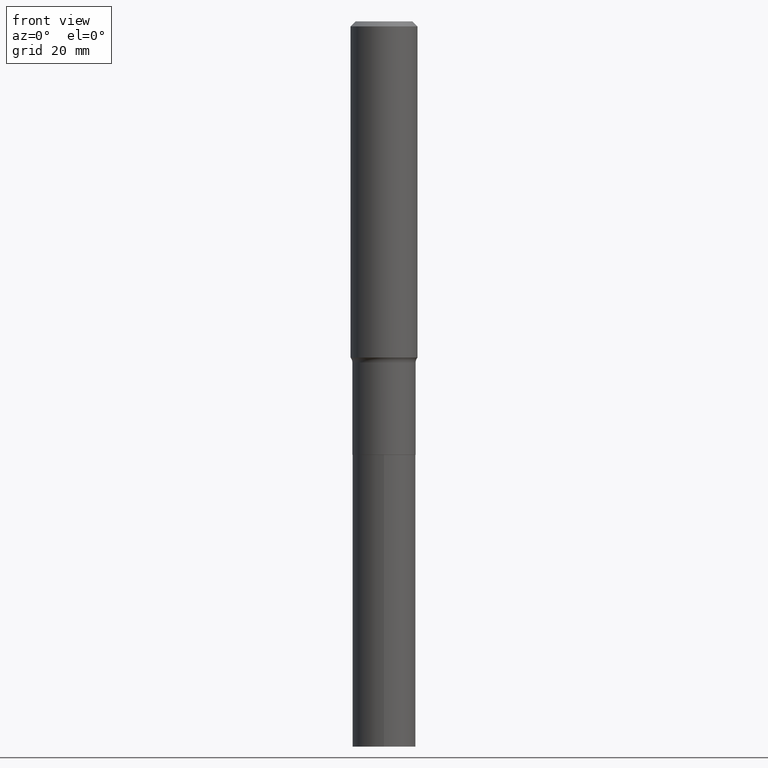
[diagram: clean part render]
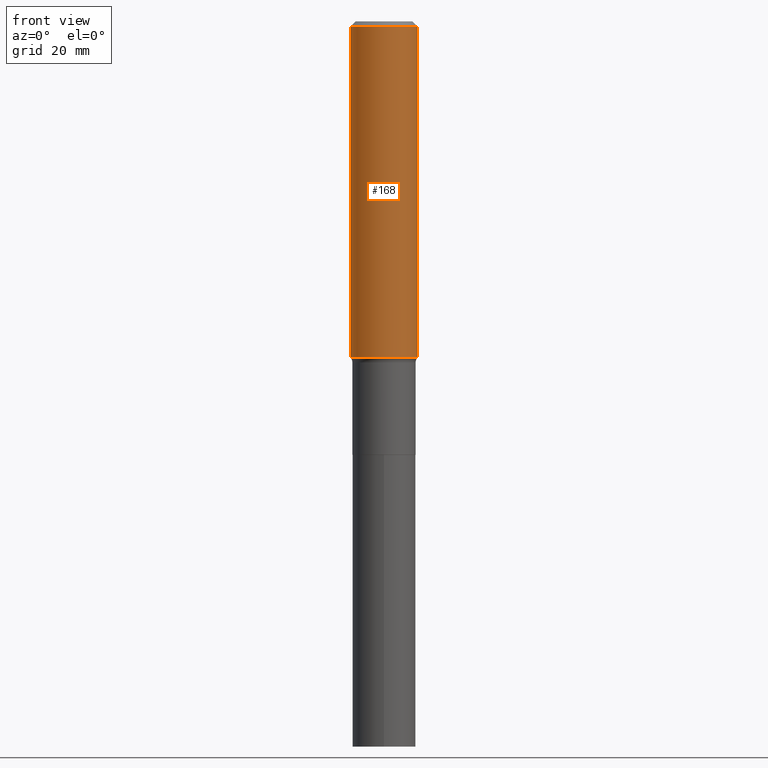
[diagram: same view with one face highlighted and labeled with its STEP entity id]
A machine part, front view. The second image highlights one B-rep face of the part: STEP entity #168.
In plain terms, the highlighted cylindrical surface (edge-blend (fillet) strip) has radius 9.0005 mm, axis along (-0, 0, 1).
Its self-contained STEP definition (entity closure, byte-faithful):
#13 = EDGE_CURVE ( 'NONE', #107, #334, #457, .T. ) ;
#19 = CARTESIAN_POINT ( 'NONE',  ( -0.3543500000000006644, -9.905675328687322554E-15, -3.558227098234926000 ) ) ;
#30 = ORIENTED_EDGE ( 'NONE', *, *, #132, .F. ) ;
#39 = ORIENTED_EDGE ( 'NONE', *, *, #13, .T. ) ;
#58 = CARTESIAN_POINT ( 'NONE',  ( 0.3543500000000002759, -2.474412824838130666E-15, 1.727873240503291150E-29 ) ) ;
#59 = DIRECTION ( 'NONE',  ( -2.445468806185136597E-29, 3.491481338843145583E-15, 1.000000000000000000 ) ) ;
#63 = CARTESIAN_POINT ( 'NONE',  ( -0.3543500000000002759, 2.517808184165916969E-15, -1.743024649231827187E-29 ) ) ;
#67 = EDGE_CURVE ( 'NONE', #334, #188, #315, .T. ) ;
#74 = CARTESIAN_POINT ( 'NONE',  ( 1.299827807207564022E-30, -1.855809618628616242E-16, -0.05315250000000037306 ) ) ;
#96 = DIRECTION ( 'NONE',  ( -2.445468806185136597E-29, 3.491481338843145583E-15, 1.000000000000000000 ) ) ;
#107 = VERTEX_POINT ( 'NONE', #19 ) ;
#111 = CARTESIAN_POINT ( 'NONE',  ( -0.3543499999999999983, -3.786724053192132939E-15, -0.05315250000000037306 ) ) ;
#128 = VERTEX_POINT ( 'NONE', #111 ) ;
#132 = EDGE_CURVE ( 'NONE', #128, #188, #398, .T. ) ;
#159 = DIRECTION ( 'NONE',  ( 1.000000000000000000, -6.982962677686267499E-15, 0.000000000000000000 ) ) ;
#166 = VECTOR ( 'NONE', #174, 39.37007874015748143 ) ;
#168 = ADVANCED_FACE ( 'NONE', ( #364 ), #273, .T. ) ;
#174 = DIRECTION ( 'NONE',  ( -2.445468806185136877E-29, 3.491481338843145188E-15, 1.000000000000000000 ) ) ;
#188 = VERTEX_POINT ( 'NONE', #246 ) ;
#193 = DIRECTION ( 'NONE',  ( -2.445468806185136597E-29, 3.491481338843145583E-15, 1.000000000000000000 ) ) ;
#213 = CARTESIAN_POINT ( 'NONE',  ( 0.3543500000000006644, -1.489789633769137492E-14, -3.558227098234926000 ) ) ;
#219 = EDGE_LOOP ( 'NONE', ( #439, #39, #299, #30 ) ) ;
#221 = EDGE_CURVE ( 'NONE', #107, #128, #391, .T. ) ;
#241 = DIRECTION ( 'NONE',  ( 1.000000000000000000, -6.982962677686266711E-15, 4.876176775795935793E-29 ) ) ;
#243 = CARTESIAN_POINT ( 'NONE',  ( 0.000000000000000000, 0.000000000000000000, 0.000000000000000000 ) ) ;
#246 = CARTESIAN_POINT ( 'NONE',  ( 0.3543499999999999983, -2.659993786700990170E-15, -0.05315250000000037306 ) ) ;
#248 = DIRECTION ( 'NONE',  ( -2.445468806185136877E-29, 3.491481338843145188E-15, 1.000000000000000000 ) ) ;
#249 = AXIS2_PLACEMENT_3D ( 'NONE', #243, #59, #241 ) ;
#273 = CYLINDRICAL_SURFACE ( 'NONE', #249, 0.3543500000000002759 ) ;
#276 = AXIS2_PLACEMENT_3D ( 'NONE', #417, #96, #159 ) ;
#299 = ORIENTED_EDGE ( 'NONE', *, *, #67, .T. ) ;
#315 = LINE ( 'NONE', #58, #435 ) ;
#334 = VERTEX_POINT ( 'NONE', #213 ) ;
#344 = DIRECTION ( 'NONE',  ( 1.000000000000000000, -6.982962677686266711E-15, 0.000000000000000000 ) ) ;
#364 = FACE_OUTER_BOUND ( 'NONE', #219, .T. ) ;
#391 = LINE ( 'NONE', #63, #166 ) ;
#398 = CIRCLE ( 'NONE', #462, 0.3543499999999999983 ) ;
#417 = CARTESIAN_POINT ( 'NONE',  ( 8.701533374056167494E-29, -1.242348351285324031E-14, -3.558227098234926000 ) ) ;
#435 = VECTOR ( 'NONE', #248, 39.37007874015748143 ) ;
#439 = ORIENTED_EDGE ( 'NONE', *, *, #221, .F. ) ;
#457 = CIRCLE ( 'NONE', #276, 0.3543500000000004979 ) ;
#462 = AXIS2_PLACEMENT_3D ( 'NONE', #74, #193, #344 ) ;